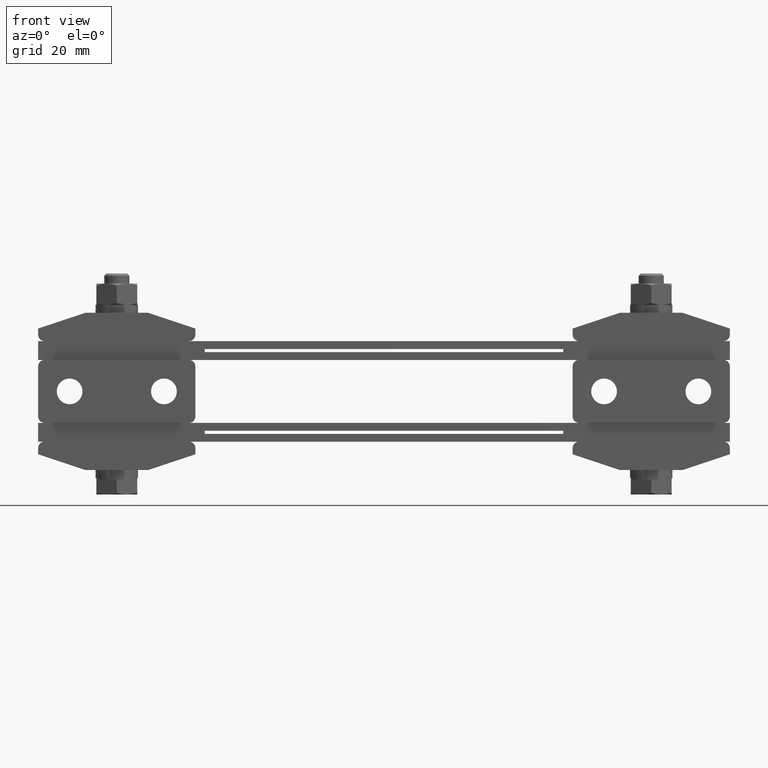
[diagram: clean part render]
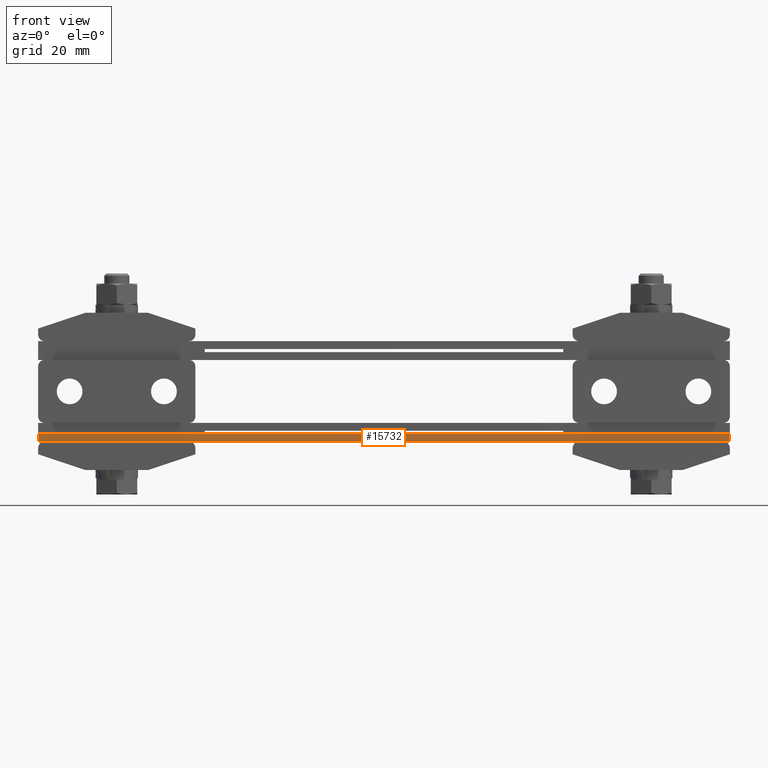
[diagram: same view with one face highlighted and labeled with its STEP entity id]
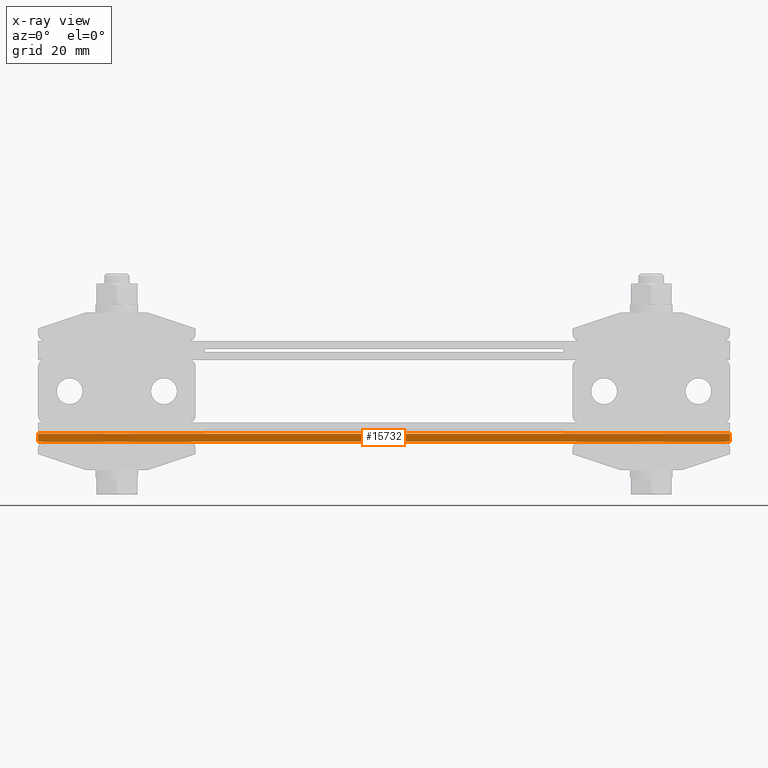
[diagram: x-ray of the same camera — body ghosted, the highlighted face saturated]
A machine part, front view. The second image highlights one B-rep face of the part: STEP entity #15732.
The next image is the same camera in x-ray: the body ghosted, the highlighted face saturated — about 0% of this face is hidden behind the body in this view.
In plain terms, the highlighted planar face has unit normal (0, 1, 0).
Its self-contained STEP definition (entity closure, byte-faithful):
#83 = EDGE_CURVE ( 'NONE', #9758, #16808, #14925, .T. ) ;
#340 = VECTOR ( 'NONE', #3740, 1000.000000000000000 ) ;
#431 = EDGE_CURVE ( 'NONE', #16808, #5445, #19787, .T. ) ;
#3257 = CARTESIAN_POINT ( 'NONE',  ( -110.0000000000000000, -12.50000000000000700, -1.000000000000000000 ) ) ;
#3740 = DIRECTION ( 'NONE',  ( -0.0000000000000000000, -0.0000000000000000000, -1.000000000000000000 ) ) ;
#4369 = AXIS2_PLACEMENT_3D ( 'NONE', #9903, #13253, #16648 ) ;
#4735 = PLANE ( 'NONE',  #4369 ) ;
#5445 = VERTEX_POINT ( 'NONE', #14012 ) ;
#6309 = CARTESIAN_POINT ( 'NONE',  ( -110.0000000000000000, -12.50000000000000700, -1.000000000000000000 ) ) ;
#7630 = ORIENTED_EDGE ( 'NONE', *, *, #11970, .T. ) ;
#8682 = VERTEX_POINT ( 'NONE', #10104 ) ;
#9240 = VECTOR ( 'NONE', #14466, 1000.000000000000000 ) ;
#9758 = VERTEX_POINT ( 'NONE', #3257 ) ;
#9903 = CARTESIAN_POINT ( 'NONE',  ( -110.0000000000000000, -12.50000000000000700, -1.000000000000000000 ) ) ;
#10104 = CARTESIAN_POINT ( 'NONE',  ( -110.0000000000000000, -12.50000000000000700, -3.500000000000000000 ) ) ;
#10257 = ORIENTED_EDGE ( 'NONE', *, *, #83, .F. ) ;
#10549 = VECTOR ( 'NONE', #19897, 1000.000000000000000 ) ;
#11021 = CARTESIAN_POINT ( 'NONE',  ( 110.0000000000000000, -12.50000000000000700, -1.000000000000000000 ) ) ;
#11437 = VECTOR ( 'NONE', #21917, 1000.000000000000000 ) ;
#11970 = EDGE_CURVE ( 'NONE', #8682, #5445, #13249, .T. ) ;
#12078 = ORIENTED_EDGE ( 'NONE', *, *, #20945, .T. ) ;
#13133 = LINE ( 'NONE', #13921, #340 ) ;
#13249 = LINE ( 'NONE', #14593, #10549 ) ;
#13253 = DIRECTION ( 'NONE',  ( 0.0000000000000000000, 1.000000000000000000, 0.0000000000000000000 ) ) ;
#13921 = CARTESIAN_POINT ( 'NONE',  ( -110.0000000000000000, -12.50000000000000700, -1.000000000000000000 ) ) ;
#13939 = ORIENTED_EDGE ( 'NONE', *, *, #431, .F. ) ;
#14012 = CARTESIAN_POINT ( 'NONE',  ( 110.0000000000000000, -12.50000000000000700, -3.500000000000000000 ) ) ;
#14466 = DIRECTION ( 'NONE',  ( -0.0000000000000000000, -0.0000000000000000000, -1.000000000000000000 ) ) ;
#14593 = CARTESIAN_POINT ( 'NONE',  ( -110.0000000000000000, -12.50000000000000700, -3.500000000000000000 ) ) ;
#14925 = LINE ( 'NONE', #6309, #11437 ) ;
#15732 = ADVANCED_FACE ( 'NONE', ( #21167 ), #4735, .F. ) ;
#16648 = DIRECTION ( 'NONE',  ( 0.0000000000000000000, -0.0000000000000000000, 1.000000000000000000 ) ) ;
#16808 = VERTEX_POINT ( 'NONE', #21749 ) ;
#19787 = LINE ( 'NONE', #11021, #9240 ) ;
#19897 = DIRECTION ( 'NONE',  ( 1.000000000000000000, 0.0000000000000000000, 0.0000000000000000000 ) ) ;
#20812 = EDGE_LOOP ( 'NONE', ( #7630, #13939, #10257, #12078 ) ) ;
#20945 = EDGE_CURVE ( 'NONE', #9758, #8682, #13133, .T. ) ;
#21167 = FACE_OUTER_BOUND ( 'NONE', #20812, .T. ) ;
#21749 = CARTESIAN_POINT ( 'NONE',  ( 110.0000000000000000, -12.50000000000000700, -1.000000000000000000 ) ) ;
#21917 = DIRECTION ( 'NONE',  ( 1.000000000000000000, 0.0000000000000000000, 0.0000000000000000000 ) ) ;